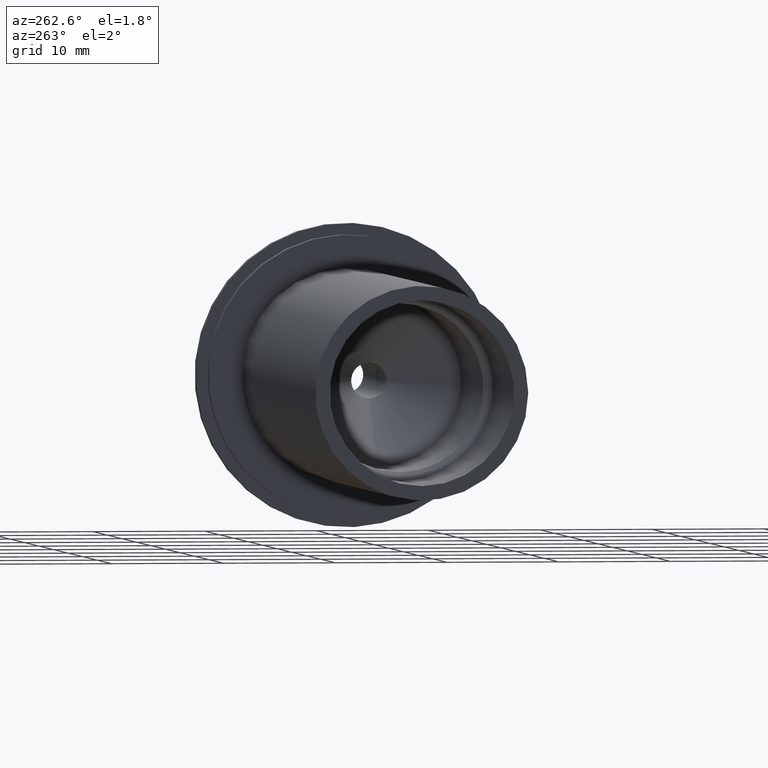
[diagram: clean part render]
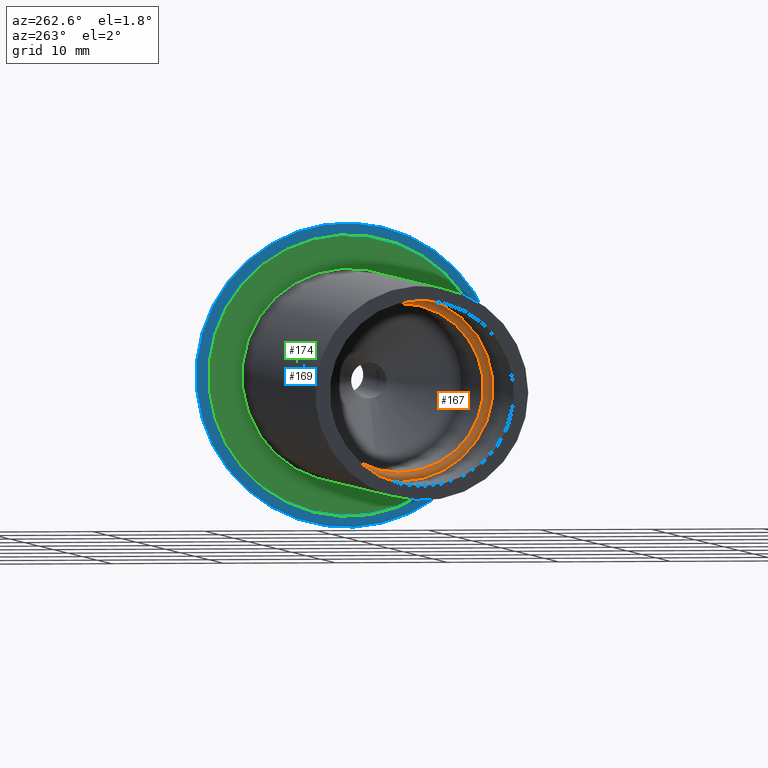
[diagram: same view with three faces highlighted in distinct colors, each labeled with its STEP entity id]
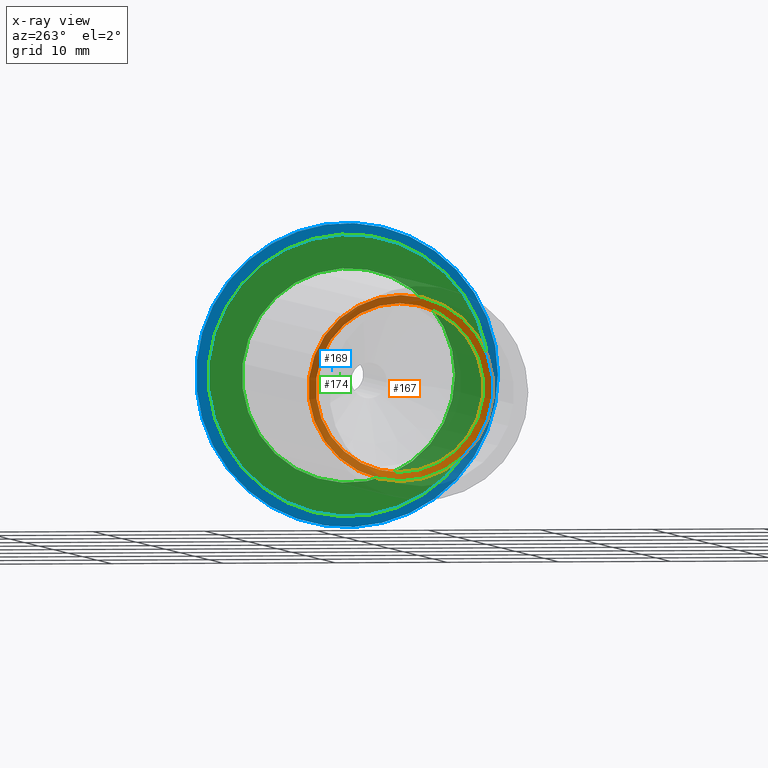
[diagram: x-ray of the same camera — body ghosted, the three highlighted faces saturated]
A machine part, auxiliary view with three faces highlighted in distinct colors.
The next image is the same camera in x-ray (body ghosted, the three faces saturated) — at least one of them is partly hidden behind the body in this view.
Their STEP definitions:

[orange] entity #167 — the highlighted conical surface has half-angle 45 deg.
#24=CONICAL_SURFACE('',#207,4.125,0.785398163397448);
#28=FACE_OUTER_BOUND('',#40,.T.);
#40=EDGE_LOOP('',(#130,#131,#132,#133));
#56=LINE('',#304,#64);
#64=VECTOR('',#249,4.125);
#73=CIRCLE('',#206,7.5);
#74=CIRCLE('',#208,8.25);
#86=VERTEX_POINT('',#298);
#87=VERTEX_POINT('',#302);
#101=EDGE_CURVE('',#86,#86,#73,.T.);
#103=EDGE_CURVE('',#87,#87,#74,.T.);
#104=EDGE_CURVE('',#87,#86,#56,.T.);
#130=ORIENTED_EDGE('',*,*,#103,.T.);
#131=ORIENTED_EDGE('',*,*,#104,.T.);
#132=ORIENTED_EDGE('',*,*,#101,.T.);
#133=ORIENTED_EDGE('',*,*,#104,.F.);
#167=ADVANCED_FACE('',(#28),#24,.F.);
#206=AXIS2_PLACEMENT_3D('',#299,#242,#243);
#207=AXIS2_PLACEMENT_3D('',#301,#245,#246);
#208=AXIS2_PLACEMENT_3D('',#303,#247,#248);
#242=DIRECTION('center_axis',(1.,0.,0.));
#243=DIRECTION('ref_axis',(0.,0.,1.));
#245=DIRECTION('center_axis',(-1.,0.,0.));
#246=DIRECTION('ref_axis',(0.,0.,1.));
#247=DIRECTION('center_axis',(-1.,0.,0.));
#248=DIRECTION('ref_axis',(0.,0.,1.));
#249=DIRECTION('',(0.707106781186548,8.65956056235493E-17,0.707106781186547));
#298=CARTESIAN_POINT('',(-37.25,9.18485099360515E-16,-7.5));
#299=CARTESIAN_POINT('Origin',(-37.25,0.,0.));
#301=CARTESIAN_POINT('Origin',(-33.875,0.,0.));
#302=CARTESIAN_POINT('',(-38.,-1.01033360929657E-15,-8.25));
#303=CARTESIAN_POINT('Origin',(-38.,0.,0.));
#304=CARTESIAN_POINT('',(-33.875,-5.05166804648283E-16,-4.125));

[blue] entity #169 — the highlighted planar face has unit normal (-1, 0, 0).
#15=FACE_BOUND('',#43,.T.);
#19=PLANE('',#211);
#30=FACE_OUTER_BOUND('',#42,.T.);
#42=EDGE_LOOP('',(#138));
#43=EDGE_LOOP('',(#139));
#76=CIRCLE('',#212,13.5);
#77=CIRCLE('',#213,12.5);
#89=VERTEX_POINT('',#310);
#90=VERTEX_POINT('',#312);
#107=EDGE_CURVE('',#89,#89,#76,.T.);
#108=EDGE_CURVE('',#90,#90,#77,.T.);
#138=ORIENTED_EDGE('',*,*,#107,.F.);
#139=ORIENTED_EDGE('',*,*,#108,.T.);
#169=ADVANCED_FACE('',(#30,#15),#19,.T.);
#211=AXIS2_PLACEMENT_3D('',#309,#255,#256);
#212=AXIS2_PLACEMENT_3D('',#311,#257,#258);
#213=AXIS2_PLACEMENT_3D('',#313,#259,#260);
#255=DIRECTION('center_axis',(-1.,0.,0.));
#256=DIRECTION('ref_axis',(0.,0.,1.));
#257=DIRECTION('center_axis',(1.,0.,0.));
#258=DIRECTION('ref_axis',(0.,0.,-1.));
#259=DIRECTION('center_axis',(1.,0.,0.));
#260=DIRECTION('ref_axis',(0.,0.,-1.));
#309=CARTESIAN_POINT('Origin',(-0.999999999999996,13.5,0.));
#310=CARTESIAN_POINT('',(-0.999999999999996,-13.5,-1.65327317884893E-15));
#311=CARTESIAN_POINT('Origin',(-0.999999999999996,0.,0.));
#312=CARTESIAN_POINT('',(-0.999999999999996,-12.5,-1.53080849893419E-15));
#313=CARTESIAN_POINT('Origin',(-0.999999999999996,0.,0.));

[green] entity #174 — the highlighted planar face has unit normal (-1, 0, 0).
#18=FACE_BOUND('',#51,.T.);
#22=PLANE('',#221);
#35=FACE_OUTER_BOUND('',#50,.T.);
#50=EDGE_LOOP('',(#152));
#51=EDGE_LOOP('',(#153));
#80=CIRCLE('',#220,9.525);
#81=CIRCLE('',#222,12.5);
#93=VERTEX_POINT('',#323);
#94=VERTEX_POINT('',#327);
#112=EDGE_CURVE('',#93,#93,#80,.T.);
#114=EDGE_CURVE('',#94,#94,#81,.T.);
#152=ORIENTED_EDGE('',*,*,#114,.F.);
#153=ORIENTED_EDGE('',*,*,#112,.T.);
#174=ADVANCED_FACE('',(#35,#18),#22,.T.);
#220=AXIS2_PLACEMENT_3D('',#324,#274,#275);
#221=AXIS2_PLACEMENT_3D('',#326,#277,#278);
#222=AXIS2_PLACEMENT_3D('',#328,#279,#280);
#274=DIRECTION('center_axis',(1.,0.,0.));
#275=DIRECTION('ref_axis',(0.,0.,-1.));
#277=DIRECTION('center_axis',(-1.,0.,0.));
#278=DIRECTION('ref_axis',(0.,0.,1.));
#279=DIRECTION('center_axis',(1.,0.,0.));
#280=DIRECTION('ref_axis',(0.,0.,-1.));
#323=CARTESIAN_POINT('',(-2.,-9.525,-1.16647607618785E-15));
#324=CARTESIAN_POINT('Origin',(-2.,0.,0.));
#326=CARTESIAN_POINT('Origin',(-2.,12.5,0.));
#327=CARTESIAN_POINT('',(-2.,-12.5,-1.53080849893419E-15));
#328=CARTESIAN_POINT('Origin',(-2.,0.,0.));